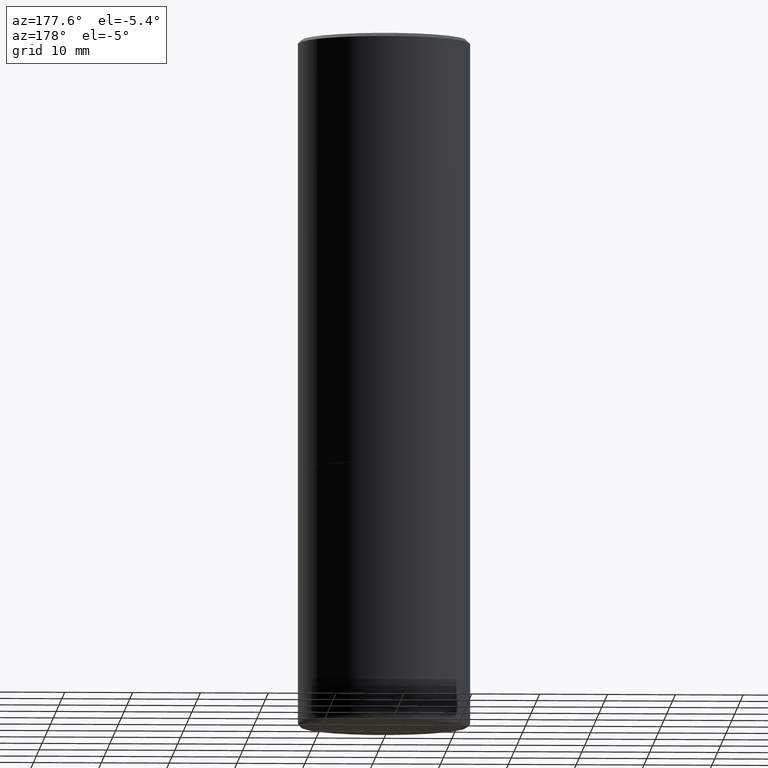
[diagram: clean part render]
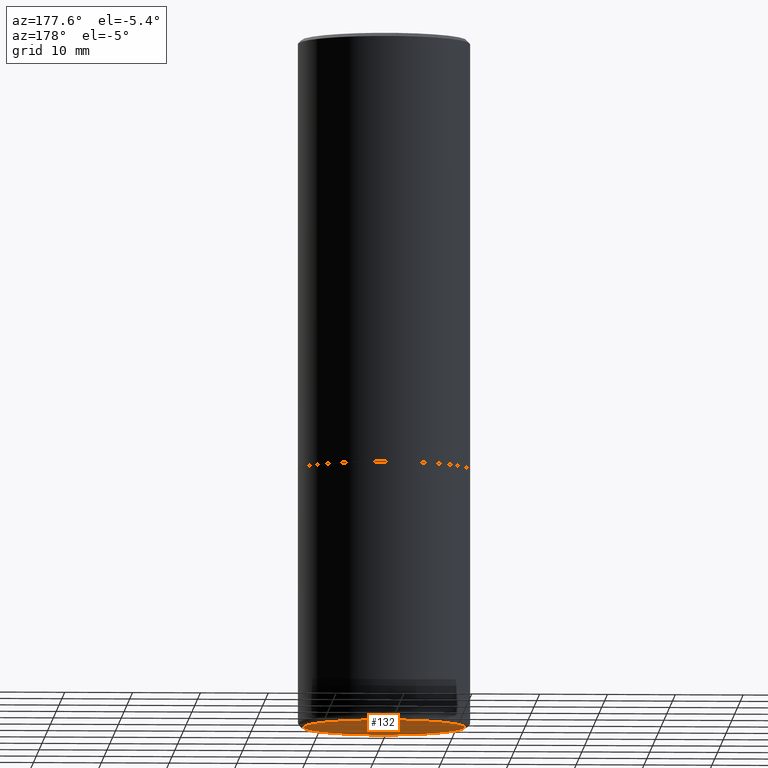
[diagram: same view with one face highlighted and labeled with its STEP entity id]
A machine part, auxiliary view. The second image highlights one B-rep face of the part: STEP entity #132.
In plain terms, the highlighted planar face has unit normal (0, -0, -1).
Its self-contained STEP definition (entity closure, byte-faithful):
#60 = DIRECTION ( 'NONE',  ( -1.000000000000000000, 6.982962677686265922E-15, -4.876176775795935793E-29 ) ) ;
#72 = CARTESIAN_POINT ( 'NONE',  ( 0.4700000000000000289, -1.724791781388512737E-14, -4.000000000000000000 ) ) ;
#75 = DIRECTION ( 'NONE',  ( -2.445468806185136597E-29, 3.491481338843145583E-15, 1.000000000000000000 ) ) ;
#125 = PLANE ( 'NONE',  #193 ) ;
#132 = ADVANCED_FACE ( 'NONE', ( #356 ), #125, .T. ) ;
#133 = DIRECTION ( 'NONE',  ( 1.000000000000000000, -6.982962677686266711E-15, 0.000000000000000000 ) ) ;
#139 = AXIS2_PLACEMENT_3D ( 'NONE', #264, #75, #270 ) ;
#157 = DIRECTION ( 'NONE',  ( 2.438088387897960049E-29, -3.491481338843145188E-15, -1.000000000000000000 ) ) ;
#175 = VERTEX_POINT ( 'NONE', #383 ) ;
#193 = AXIS2_PLACEMENT_3D ( 'NONE', #328, #157, #60 ) ;
#196 = DIRECTION ( 'NONE',  ( -2.445468806185136597E-29, 3.491481338843145583E-15, 1.000000000000000000 ) ) ;
#201 = ORIENTED_EDGE ( 'NONE', *, *, #290, .F. ) ;
#212 = ORIENTED_EDGE ( 'NONE', *, *, #271, .F. ) ;
#237 = CIRCLE ( 'NONE', #287, 0.4700000000000000289 ) ;
#243 = EDGE_LOOP ( 'NONE', ( #212, #201 ) ) ;
#264 = CARTESIAN_POINT ( 'NONE',  ( 9.781875224740546387E-29, -1.396592535537258233E-14, -4.000000000000000000 ) ) ;
#270 = DIRECTION ( 'NONE',  ( 1.000000000000000000, -6.982962677686266711E-15, 0.000000000000000000 ) ) ;
#271 = EDGE_CURVE ( 'NONE', #316, #175, #333, .T. ) ;
#287 = AXIS2_PLACEMENT_3D ( 'NONE', #338, #196, #133 ) ;
#290 = EDGE_CURVE ( 'NONE', #175, #316, #237, .T. ) ;
#316 = VERTEX_POINT ( 'NONE', #72 ) ;
#328 = CARTESIAN_POINT ( 'NONE',  ( 9.781875224740546387E-29, -1.396592535537258233E-14, -4.000000000000000000 ) ) ;
#333 = CIRCLE ( 'NONE', #139, 0.4700000000000000289 ) ;
#338 = CARTESIAN_POINT ( 'NONE',  ( 9.781875224740546387E-29, -1.396592535537258233E-14, -4.000000000000000000 ) ) ;
#356 = FACE_OUTER_BOUND ( 'NONE', #243, .T. ) ;
#383 = CARTESIAN_POINT ( 'NONE',  ( -0.4700000000000000289, -1.046742086685344905E-14, -4.000000000000000000 ) ) ;